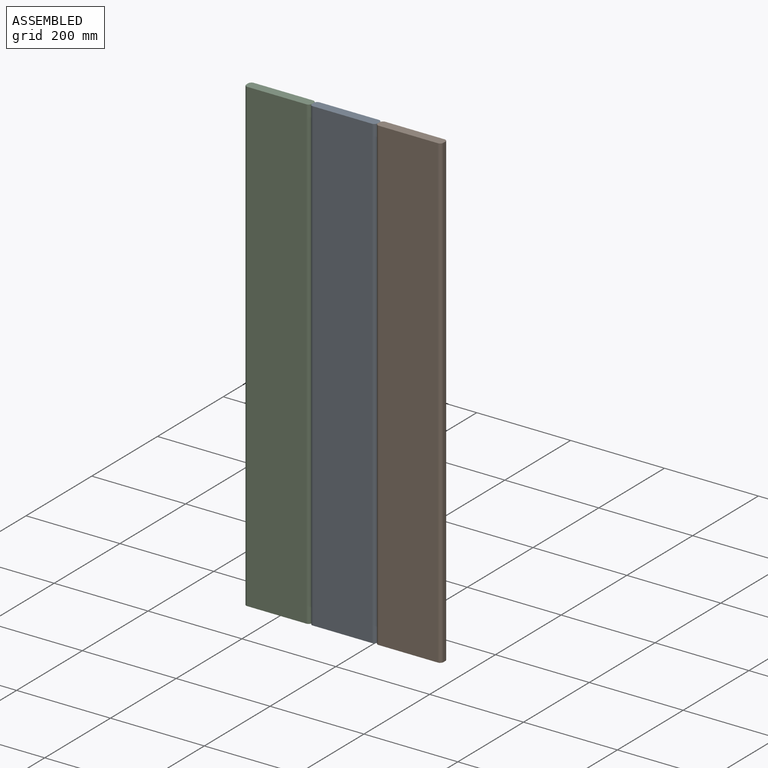
[diagram: assembled view]
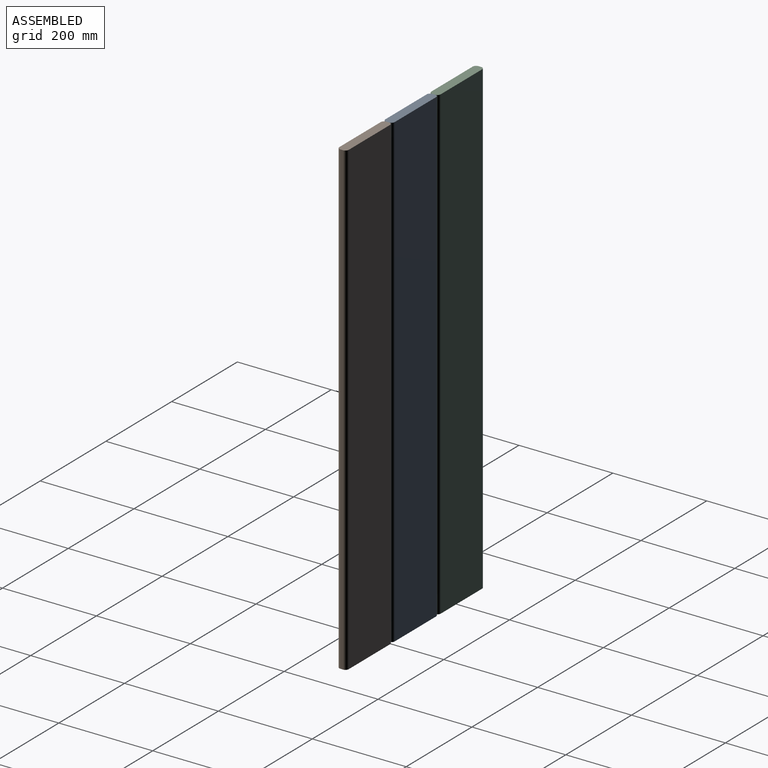
[diagram: assembled view, second angle]
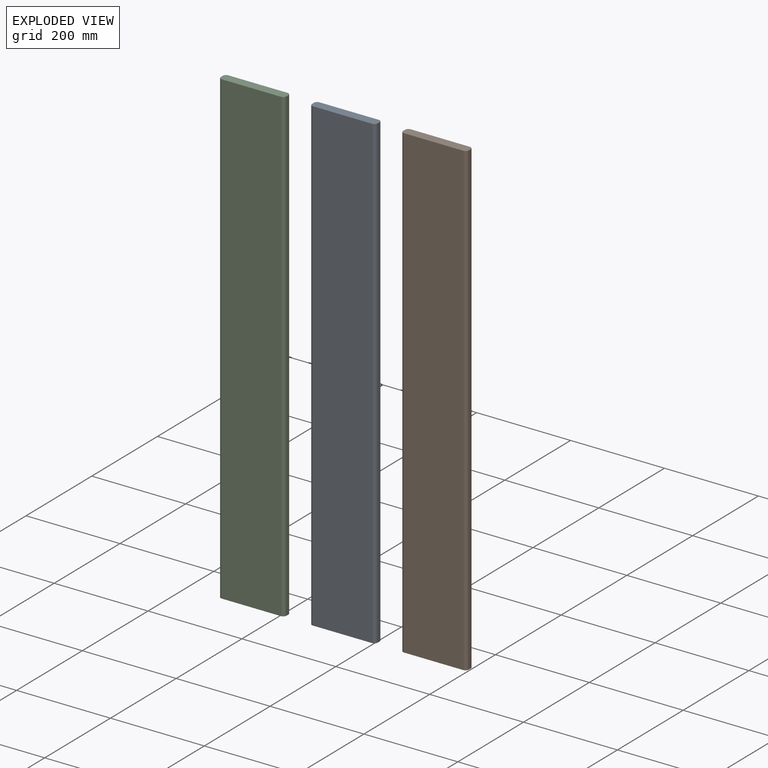
[diagram: exploded view]
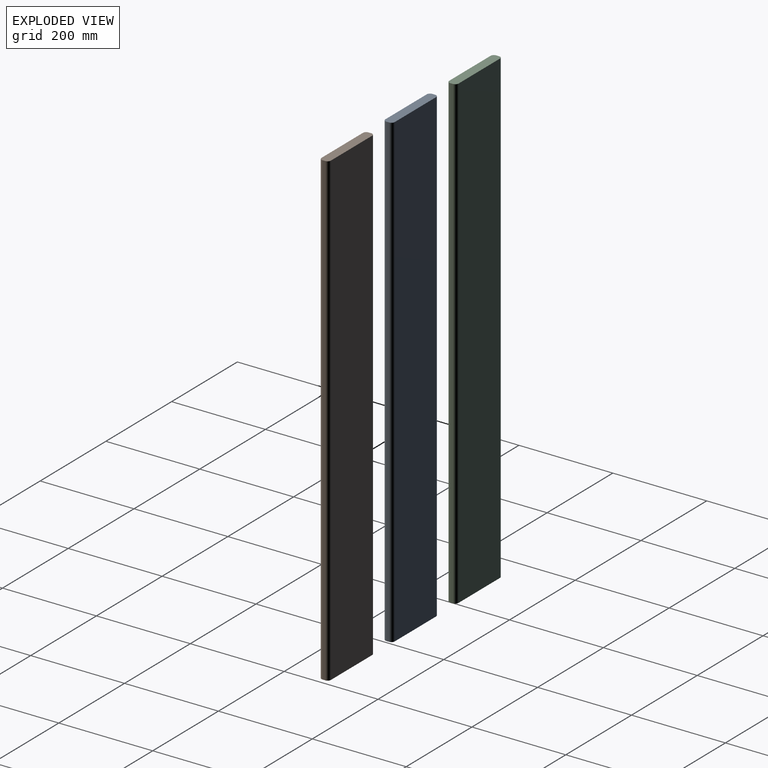
[diagram: exploded view, second angle]
ASSEMBLY  parts=3 mates=2
PART A: 10 faces, bbox 140x20x1000 mm
  f0: plane 1000x6mm, normal (-1,0,0), area 6000mm2, adj f4,f5,f6,f9
  f1: plane 1000x126mm, normal (0,-1,0), area 126000mm2, adj f4,f5,f6,f7
  f2: plane 1000x6mm, normal (1,0,0), area 6000mm2, adj f4,f5,f7,f8
  f3: plane 1000x126mm, normal (0,1,0), area 126000mm2, adj f4,f5,f8,f9
  f4: plane 140x20mm, normal (0,0,1), area 2757.9mm2, adj f0,f1,f2,f3,f6,f7,f8,f9
  f5: plane 140x20mm, normal (0,0,-1), area 2757.9mm2, adj f0,f1,f2,f3,f6,f7,f8,f9
  f6: cylinder r=7mm len=1000mm, axis (0,0,1), area 10995.6mm2, adj f0,f1,f4,f5
  f7: cylinder r=7mm len=1000mm, axis (0,0,-1), area 10995.6mm2, adj f1,f2,f4,f5
  f8: cylinder r=7mm len=1000mm, axis (0,0,1), area 10995.6mm2, adj f2,f3,f4,f5
  f9: cylinder r=7mm len=1000mm, axis (0,0,-1), area 10995.6mm2, adj f0,f3,f4,f5
PART B: same geometry as A
PART C: same geometry as A
PLACE A t=(283.37,287.09,-171.32)mm
PLACE B t=(423.37,287.09,-171.32)mm
PLACE C t=(143.37,287.09,-171.32)mm
MATE planar A.f2 <-> B.f0  axis (1,0,0) through (423.37,297.09,328.68)mm
MATE planar C.f2 <-> A.f0  axis (1,0,0) through (283.37,297.09,328.68)mm
